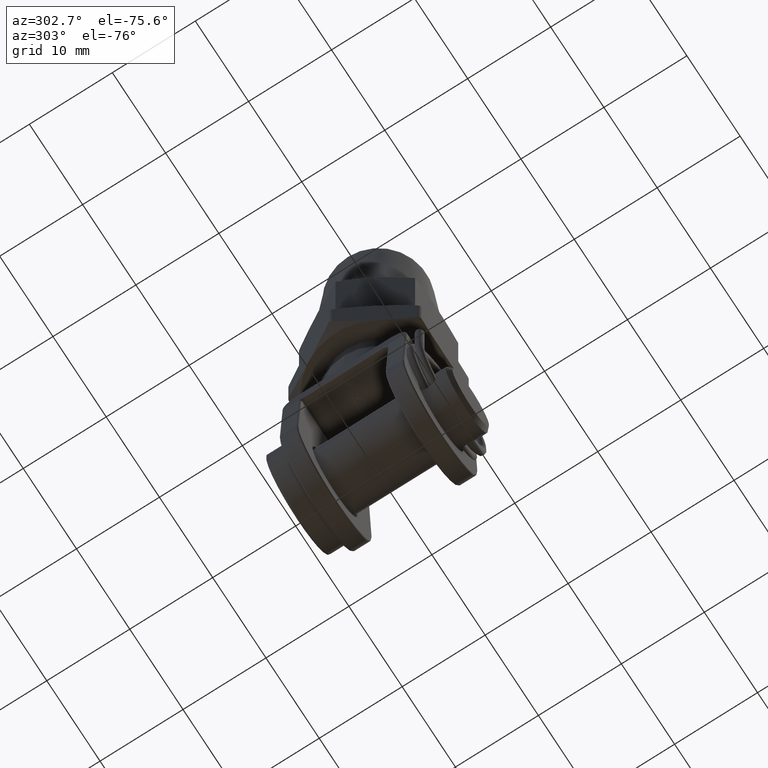
[diagram: clean part render]
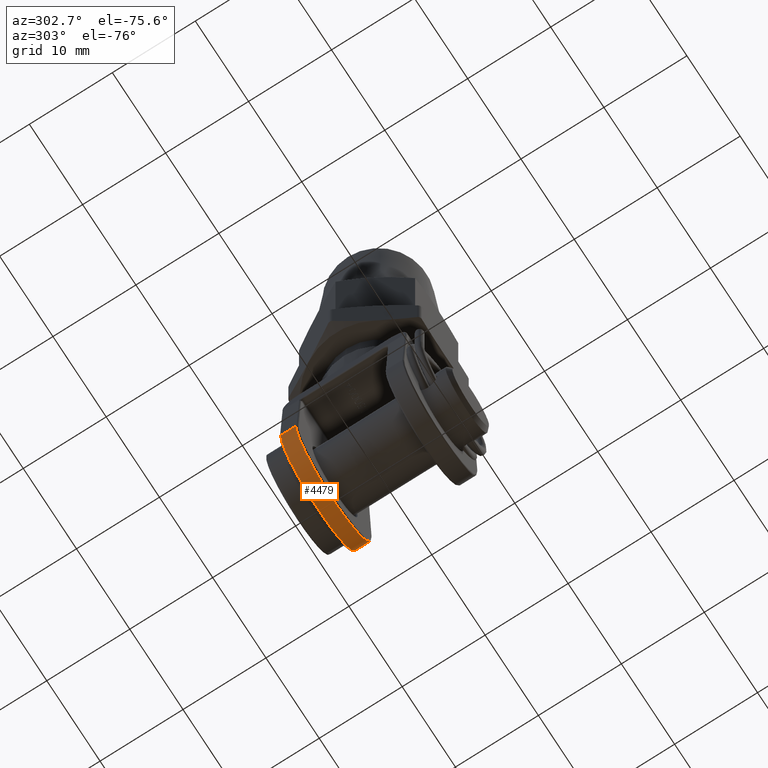
[diagram: same view with one face highlighted and labeled with its STEP entity id]
A machine part, auxiliary view. The second image highlights one B-rep face of the part: STEP entity #4479.
In plain terms, the highlighted cylindrical surface (partial cylindrical patch) has radius 7 mm, axis along (-0, -1, -0).
Its self-contained STEP definition (entity closure, byte-faithful):
#365 = CARTESIAN_POINT ( 'NONE',  ( 6.994278011616017900, 7.299999999999999800, -18.71702456604033000 ) ) ;
#540 = DIRECTION ( 'NONE',  ( 0.0000000000000000000, 0.0000000000000000000, -1.000000000000000000 ) ) ;
#1190 = EDGE_CURVE ( 'NONE', #20365, #22387, #7737, .T. ) ;
#1370 = CYLINDRICAL_SURFACE ( 'NONE', #6747, 6.999999999999999100 ) ;
#1664 = DIRECTION ( 'NONE',  ( 0.0000000000000000000, 0.0000000000000000000, -1.000000000000000000 ) ) ;
#1924 = FACE_OUTER_BOUND ( 'NONE', #2433, .T. ) ;
#2433 = EDGE_LOOP ( 'NONE', ( #3549, #16451, #10024, #3758 ) ) ;
#3549 = ORIENTED_EDGE ( 'NONE', *, *, #10782, .T. ) ;
#3650 = DIRECTION ( 'NONE',  ( -0.0000000000000000000, -1.000000000000000000, -0.0000000000000000000 ) ) ;
#3758 = ORIENTED_EDGE ( 'NONE', *, *, #1190, .T. ) ;
#4479 = ADVANCED_FACE ( 'NONE', ( #1924 ), #1370, .T. ) ;
#4851 = LINE ( 'NONE', #7300, #5396 ) ;
#5396 = VECTOR ( 'NONE', #3650, 1000.000000000000000 ) ;
#6288 = AXIS2_PLACEMENT_3D ( 'NONE', #15484, #8486, #1664 ) ;
#6747 = AXIS2_PLACEMENT_3D ( 'NONE', #21441, #19708, #540 ) ;
#6885 = DIRECTION ( 'NONE',  ( 0.0000000000000000000, 0.0000000000000000000, -1.000000000000000000 ) ) ;
#7300 = CARTESIAN_POINT ( 'NONE',  ( -6.994278011616017900, 7.500000000000000000, -18.71702456604033000 ) ) ;
#7502 = CIRCLE ( 'NONE', #17595, 6.999999999999999100 ) ;
#7636 = CARTESIAN_POINT ( 'NONE',  ( 6.994278011616017900, 7.500000000000000000, -18.71702456604033000 ) ) ;
#7732 = EDGE_CURVE ( 'NONE', #20365, #19237, #4851, .T. ) ;
#7737 = CIRCLE ( 'NONE', #6288, 6.999999999999999100 ) ;
#7858 = DIRECTION ( 'NONE',  ( -0.0000000000000000000, -1.000000000000000000, -0.0000000000000000000 ) ) ;
#8486 = DIRECTION ( 'NONE',  ( -0.0000000000000000000, -1.000000000000000000, 0.0000000000000000000 ) ) ;
#10024 = ORIENTED_EDGE ( 'NONE', *, *, #7732, .F. ) ;
#10782 = EDGE_CURVE ( 'NONE', #22387, #21331, #13257, .T. ) ;
#11988 = EDGE_CURVE ( 'NONE', #21331, #19237, #7502, .T. ) ;
#12005 = CARTESIAN_POINT ( 'NONE',  ( 1.925929944387235900E-031, 5.450000000000000200, -18.99999999999999600 ) ) ;
#13257 = LINE ( 'NONE', #7636, #21957 ) ;
#13787 = CARTESIAN_POINT ( 'NONE',  ( -6.994278011616017900, 5.450000000000000200, -18.71702456604033000 ) ) ;
#15484 = CARTESIAN_POINT ( 'NONE',  ( 1.925929944387235900E-031, 7.299999999999999800, -18.99999999999999600 ) ) ;
#16451 = ORIENTED_EDGE ( 'NONE', *, *, #11988, .T. ) ;
#17178 = DIRECTION ( 'NONE',  ( 0.0000000000000000000, 1.000000000000000000, -0.0000000000000000000 ) ) ;
#17595 = AXIS2_PLACEMENT_3D ( 'NONE', #12005, #17178, #6885 ) ;
#18720 = CARTESIAN_POINT ( 'NONE',  ( 6.994278011616017900, 5.450000000000000200, -18.71702456604033000 ) ) ;
#19237 = VERTEX_POINT ( 'NONE', #13787 ) ;
#19708 = DIRECTION ( 'NONE',  ( -0.0000000000000000000, -1.000000000000000000, -0.0000000000000000000 ) ) ;
#20365 = VERTEX_POINT ( 'NONE', #20579 ) ;
#20579 = CARTESIAN_POINT ( 'NONE',  ( -6.994278011616017900, 7.299999999999999800, -18.71702456604033000 ) ) ;
#21331 = VERTEX_POINT ( 'NONE', #18720 ) ;
#21441 = CARTESIAN_POINT ( 'NONE',  ( 1.925929944387235900E-031, 7.500000000000000000, -18.99999999999999600 ) ) ;
#21957 = VECTOR ( 'NONE', #7858, 1000.000000000000000 ) ;
#22387 = VERTEX_POINT ( 'NONE', #365 ) ;